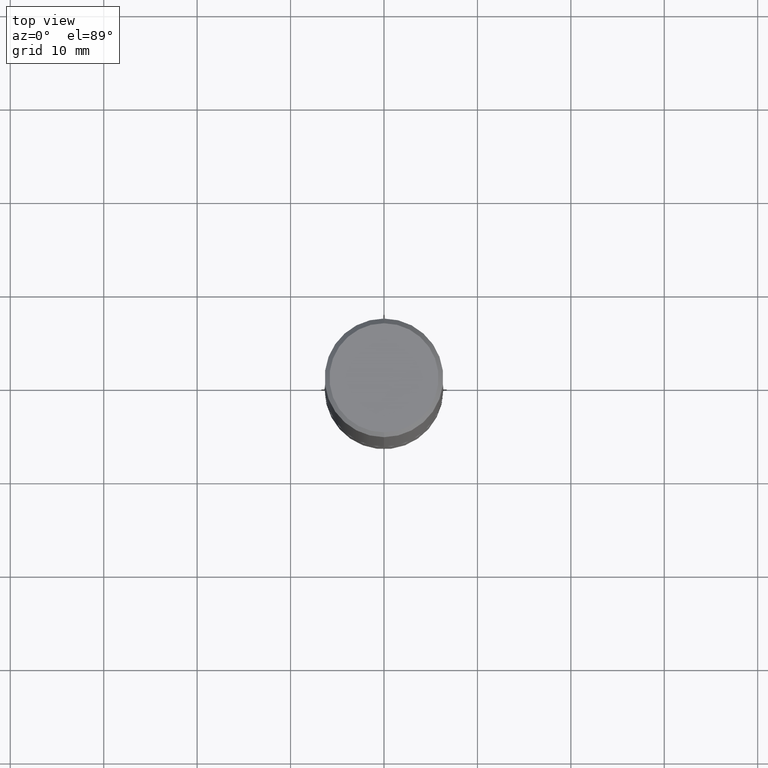
[diagram: clean part render]
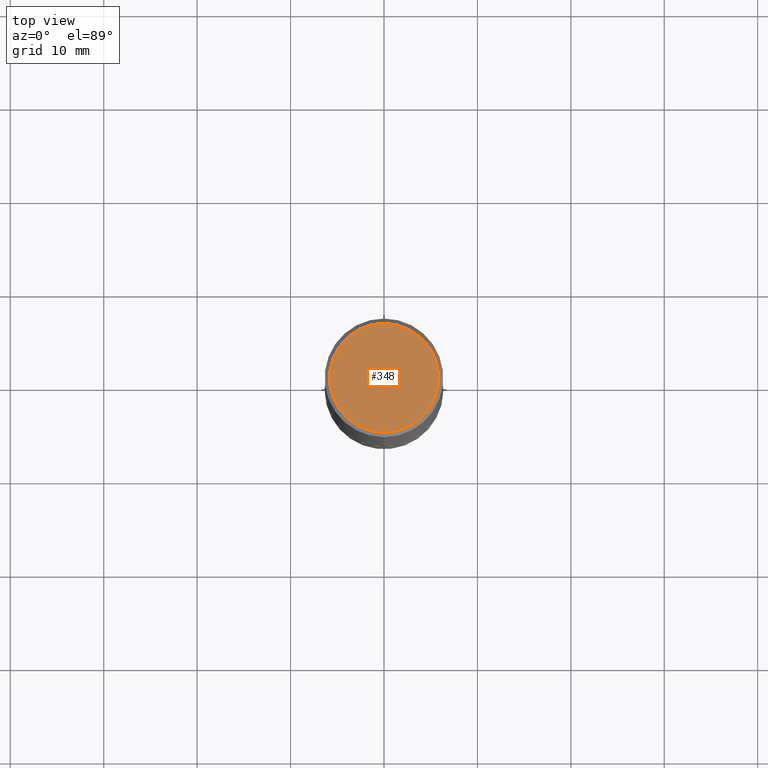
[diagram: same view with one face highlighted and labeled with its STEP entity id]
A machine part, top view. The second image highlights one B-rep face of the part: STEP entity #348.
In plain terms, the highlighted planar face has unit normal (0, -0, -1).
Its self-contained STEP definition (entity closure, byte-faithful):
#26 = DIRECTION ( 'NONE',  ( 6.982962677686265922E-15, 1.000000000000000000, -3.491974475474889339E-15 ) ) ;
#67 = ORIENTED_EDGE ( 'NONE', *, *, #239, .T. ) ;
#76 = CARTESIAN_POINT ( 'NONE',  ( -1.646519519465165587E-15, -0.2299999999999995381, 1.230118799794564821E-15 ) ) ;
#89 = AXIS2_PLACEMENT_3D ( 'NONE', #247, #95, #90 ) ;
#90 = DIRECTION ( 'NONE',  ( -6.982962677686265922E-15, -1.000000000000000000, 3.491974475474888944E-15 ) ) ;
#92 = DIRECTION ( 'NONE',  ( -6.982962677686265922E-15, -1.000000000000000000, 3.491974475474888944E-15 ) ) ;
#94 = EDGE_LOOP ( 'NONE', ( #67, #356 ) ) ;
#95 = DIRECTION ( 'NONE',  ( -2.445124450715689953E-29, 3.491974475474889339E-15, 1.000000000000000000 ) ) ;
#152 = FACE_OUTER_BOUND ( 'NONE', #94, .T. ) ;
#156 = CARTESIAN_POINT ( 'NONE',  ( 1.675911042644702393E-15, 0.2299999999999995381, -3.761894589238807740E-16 ) ) ;
#188 = PLANE ( 'NONE',  #258 ) ;
#193 = VERTEX_POINT ( 'NONE', #76 ) ;
#208 = CIRCLE ( 'NONE', #388, 0.2299999999999995381 ) ;
#232 = CIRCLE ( 'NONE', #89, 0.2299999999999995381 ) ;
#239 = EDGE_CURVE ( 'NONE', #371, #193, #232, .T. ) ;
#247 = CARTESIAN_POINT ( 'NONE',  ( -1.043981755273221397E-44, 1.490949731089762593E-30, 4.269646704353420484E-16 ) ) ;
#258 = AXIS2_PLACEMENT_3D ( 'NONE', #278, #410, #26 ) ;
#278 = CARTESIAN_POINT ( 'NONE',  ( 1.606081415867837912E-15, 0.2299999999999995381, -5.896717941415518474E-16 ) ) ;
#330 = EDGE_CURVE ( 'NONE', #193, #371, #208, .T. ) ;
#348 = ADVANCED_FACE ( 'NONE', ( #152 ), #188, .F. ) ;
#349 = CARTESIAN_POINT ( 'NONE',  ( -1.043981755273221397E-44, 1.490949731089762593E-30, 4.269646704353420484E-16 ) ) ;
#356 = ORIENTED_EDGE ( 'NONE', *, *, #330, .T. ) ;
#371 = VERTEX_POINT ( 'NONE', #156 ) ;
#373 = DIRECTION ( 'NONE',  ( -2.445124450715689953E-29, 3.491974475474889339E-15, 1.000000000000000000 ) ) ;
#388 = AXIS2_PLACEMENT_3D ( 'NONE', #349, #373, #92 ) ;
#410 = DIRECTION ( 'NONE',  ( 2.445124450715689673E-29, -3.491974475474889339E-15, -1.000000000000000000 ) ) ;